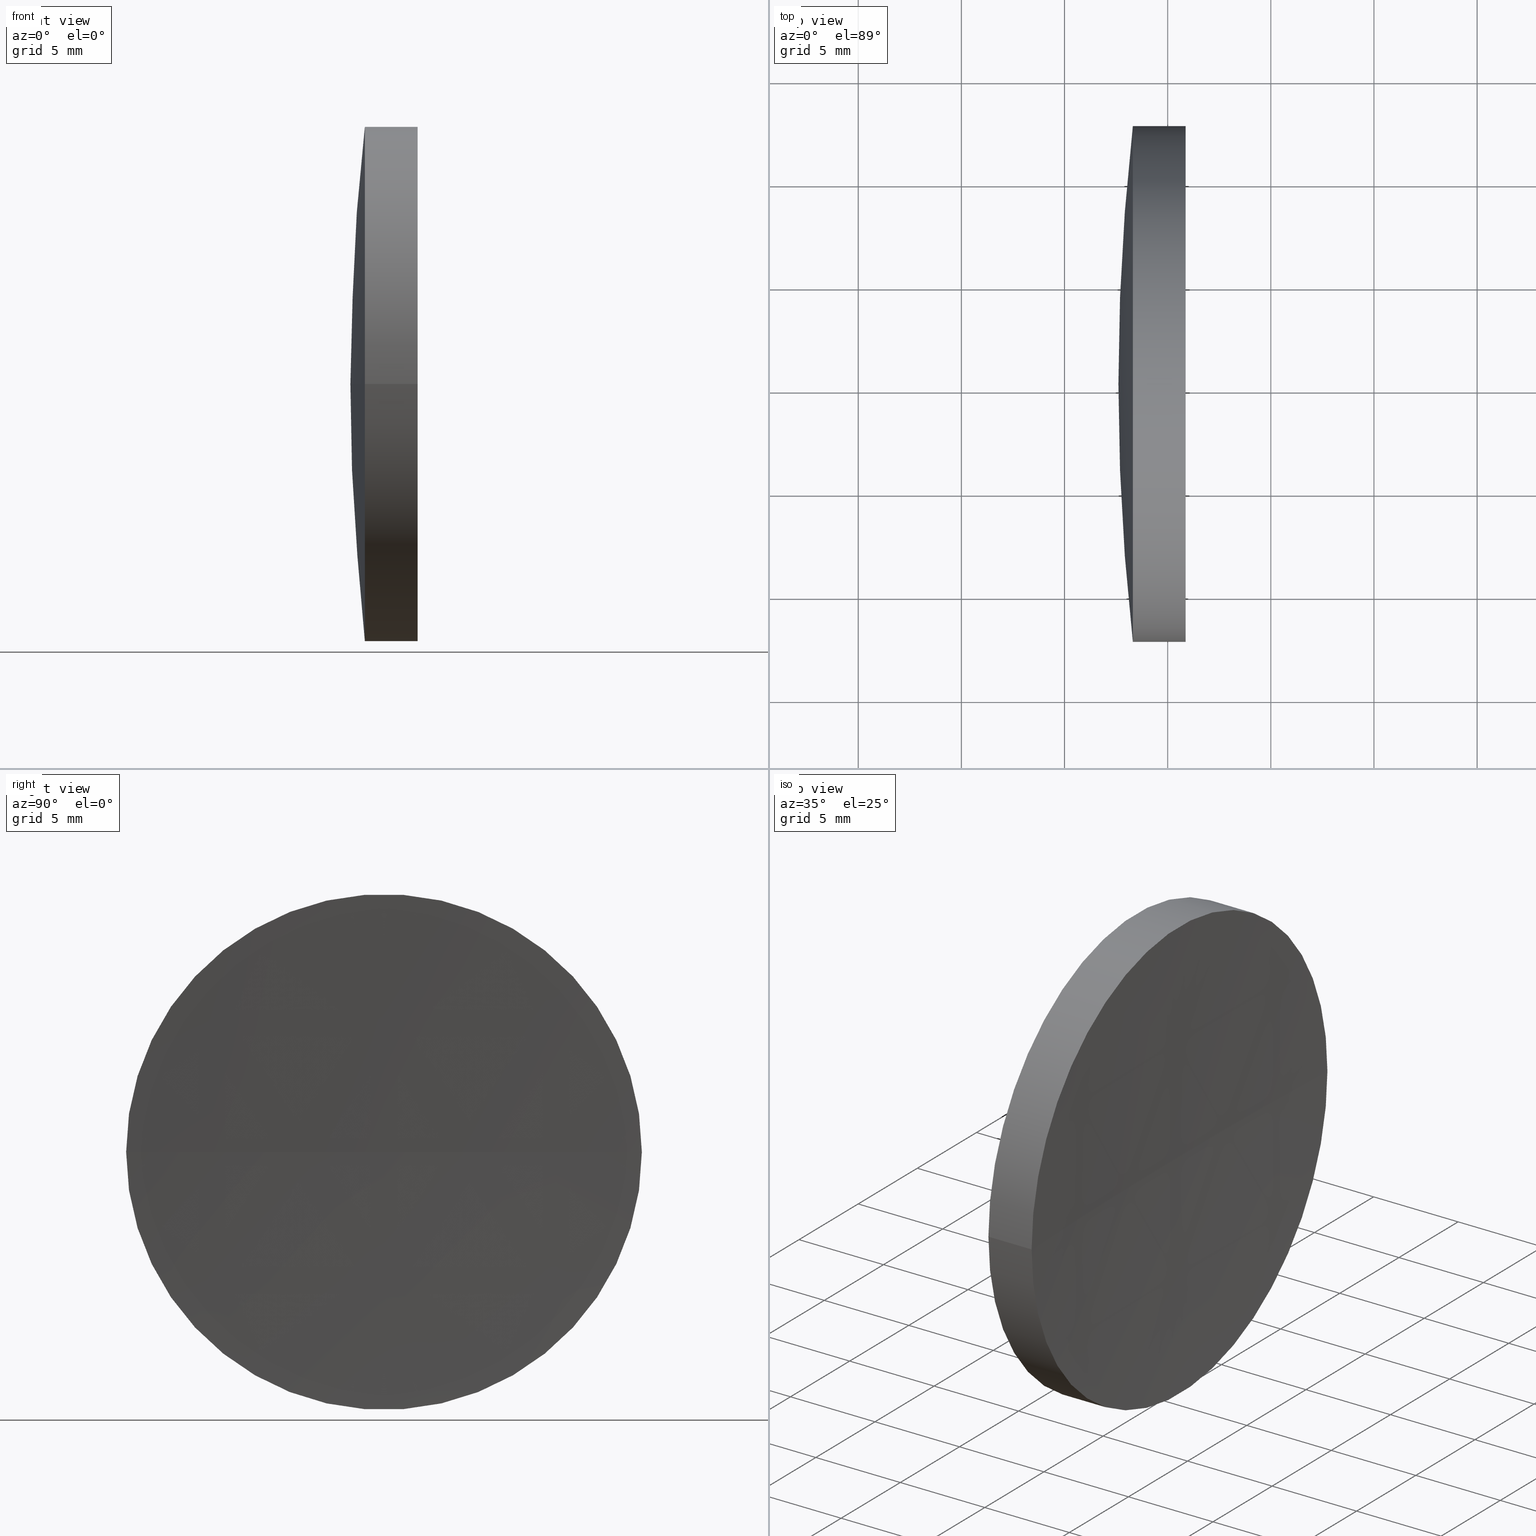
[diagram: canonical four-view strip — front | top / right | iso, engineering-drawing reading convention]
A machine part, canonical four-view strip (front | top / right | iso — engineering-drawing reading convention). The complete STEP part file that produces these views, byte-faithful:
ISO-10303-21;
HEADER;
FILE_DESCRIPTION (( 'STEP AP214' ),
    '1' );
FILE_NAME ('150009.STEP',
    '2019-07-04T06:11:33',
    ( '' ),
    ( '' ),
    'SwSTEP 2.0',
    'SolidWorks 2016',
    '' );
FILE_SCHEMA (( 'AUTOMOTIVE_DESIGN' ));
ENDSEC;

DATA;
#1 = EDGE_LOOP ( 'NONE', ( #11, #16, #95, #44 ) ) ;
#2 = CARTESIAN_POINT ( 'NONE',  ( 115.9444912979631800, 52.71684047094034800, 0.0000000000000000000 ) ) ;
#3 = DIRECTION ( 'NONE',  ( -8.496118506040342700E-032, 1.224646799147353200E-016, -1.000000000000000000 ) ) ;
#4 = VERTEX_POINT ( 'NONE', #21 ) ;
#5 = CIRCLE ( 'NONE', #103, 12.49999999999997700 ) ;
#6 = PRODUCT_RELATED_PRODUCT_CATEGORY ( 'part', '', ( #26 ) ) ;
#7 = DIRECTION ( 'NONE',  ( -1.000000000000000000, -6.937607244762875000E-016, -0.0000000000000000000 ) ) ;
#8 = CARTESIAN_POINT ( 'NONE',  ( 234.6121936984948200, 65.21684047094031200, 0.0000000000000000000 ) ) ;
#9 = VERTEX_POINT ( 'NONE', #184 ) ;
#10 = CARTESIAN_POINT ( 'NONE',  ( 125.8689544180531200, 65.21684047094032600, 0.0000000000000000000 ) ) ;
#11 = ORIENTED_EDGE ( 'NONE', *, *, #43, .T. ) ;
#12 = EDGE_LOOP ( 'NONE', ( #123, #190, #127 ) ) ;
#13 = ORIENTED_EDGE ( 'NONE', *, *, #66, .F. ) ;
#14 = ADVANCED_BREP_SHAPE_REPRESENTATION ( '150009', ( #121, #58 ), #147 ) ;
#15 = CARTESIAN_POINT ( 'NONE',  ( 123.3119241570422400, 65.21684047094032600, 0.0000000000000000000 ) ) ;
#16 = ORIENTED_EDGE ( 'NONE', *, *, #66, .T. ) ;
#17 = APPLICATION_CONTEXT ( 'automotive_design' ) ;
#18 = CYLINDRICAL_SURFACE ( 'NONE', #93, 12.49999999999997700 ) ;
#19 = APPLICATION_PROTOCOL_DEFINITION ( 'draft international standard', 'automotive_design', 1998, #96 ) ;
#20 = CIRCLE ( 'NONE', #181, 112.0000000000000100 ) ;
#21 = CARTESIAN_POINT ( 'NONE',  ( 125.8689544180530900, 77.71684047093980000, 0.0000000000000000000 ) ) ;
#22 = CARTESIAN_POINT ( 'NONE',  ( 125.6121936984946900, 65.21684047093667400, 0.0000000000000000000 ) ) ;
#23 = DIRECTION ( 'NONE',  ( 0.0000000000000000000, 1.000000000000000000, 1.224646799147353200E-016 ) ) ;
#24 = CYLINDRICAL_SURFACE ( 'NONE', #116, 12.49999999999997700 ) ;
#25 = ADVANCED_FACE ( 'NONE', ( #137 ), #92, .F. ) ;
#26 = PRODUCT ( '150009', '150009', '', ( #163 ) ) ;
#27 = CIRCLE ( 'NONE', #140, 12.49999999999997700 ) ;
#28 = AXIS2_PLACEMENT_3D ( 'NONE', #151, #170, #85 ) ;
#29 = FILL_AREA_STYLE_COLOUR ( '', #45 ) ;
#30 = APPLICATION_PROTOCOL_DEFINITION ( 'draft international standard', 'automotive_design', 1998, #17 ) ;
#31 = EDGE_LOOP ( 'NONE', ( #13, #65, #141, #167 ) ) ;
#32 = CIRCLE ( 'NONE', #78, 304.3999999999999800 ) ;
#33 = PRODUCT_DEFINITION_CONTEXT ( 'detailed design', #17, 'design' ) ;
#34 = FILL_AREA_STYLE_COLOUR ( '', #67 ) ;
#35 = EDGE_LOOP ( 'NONE', ( #176, #149, #75 ) ) ;
#36 = SHAPE_DEFINITION_REPRESENTATION ( #122, #14 ) ;
#37 = AXIS2_PLACEMENT_3D ( 'NONE', #154, #134, #74 ) ;
#38 = ORIENTED_EDGE ( 'NONE', *, *, #43, .F. ) ;
#39 = SPHERICAL_SURFACE ( 'NONE', #52, 111.9999999999999900 ) ;
#40 = SPHERICAL_SURFACE ( 'NONE', #50, 304.3999999999999800 ) ;
#41 = ADVANCED_FACE ( 'NONE', ( #61 ), #24, .T. ) ;
#42 = FILL_AREA_STYLE ('',( #29 ) ) ;
#43 = EDGE_CURVE ( 'NONE', #49, #4, #51, .T. ) ;
#44 = ORIENTED_EDGE ( 'NONE', *, *, #155, .F. ) ;
#45 = COLOUR_RGB ( '',1.000000000000000000, 1.000000000000000000, 1.000000000000000000 ) ;
#46 = SURFACE_STYLE_USAGE ( .BOTH. , #104 ) ;
#47 = DIRECTION ( 'NONE',  ( -0.0000000000000000000, 0.0000000000000000000, 1.000000000000000000 ) ) ;
#48 = FILL_AREA_STYLE ('',( #34 ) ) ;
#49 = VERTEX_POINT ( 'NONE', #114 ) ;
#50 = AXIS2_PLACEMENT_3D ( 'NONE', #68, #146, #80 ) ;
#51 = CIRCLE ( 'NONE', #192, 12.49999999999996300 ) ;
#52 = AXIS2_PLACEMENT_3D ( 'NONE', #91, #186, #156 ) ;
#53 = CARTESIAN_POINT ( 'NONE',  ( 123.3119241570422600, 52.71684047094034800, 0.0000000000000000000 ) ) ;
#54 = DIRECTION ( 'NONE',  ( -1.000000000000000000, -6.937607244762875000E-016, -0.0000000000000000000 ) ) ;
#55 = CIRCLE ( 'NONE', #130, 12.49999999999996300 ) ;
#56 = UNCERTAINTY_MEASURE_WITH_UNIT (LENGTH_MEASURE( 1.000000000000000100E-005 ), #73, 'distance_accuracy_value', 'NONE');
#57 = DIRECTION ( 'NONE',  ( 1.110223024625158500E-015, -1.000000000000000000, 0.0000000000000000000 ) ) ;
#58 = AXIS2_PLACEMENT_3D ( 'NONE', #79, #180, #82 ) ;
#59 = SURFACE_SIDE_STYLE ('',( #119 ) ) ;
#60 = EDGE_CURVE ( 'NONE', #9, #177, #27, .T. ) ;
#61 = FACE_OUTER_BOUND ( 'NONE', #1, .T. ) ;
#62 = DIRECTION ( 'NONE',  ( -1.000000000000000000, -6.937607244762875000E-016, -0.0000000000000000000 ) ) ;
#63 = DIRECTION ( 'NONE',  ( 1.110223024625158500E-015, -1.000000000000000000, 0.0000000000000000000 ) ) ;
#64 = PRESENTATION_LAYER_ASSIGNMENT (  '', '', ( #101 ) ) ;
#65 = ORIENTED_EDGE ( 'NONE', *, *, #152, .T. ) ;
#66 = EDGE_CURVE ( 'NONE', #4, #9, #183, .T. ) ;
#67 = COLOUR_RGB ( '',1.000000000000000000, 1.000000000000000000, 1.000000000000000000 ) ;
#68 = CARTESIAN_POINT ( 'NONE',  ( 430.0121936984946800, 65.21684047093687300, 0.0000000000000000000 ) ) ;
#69 = DIRECTION ( 'NONE',  ( -1.000000000000000000, -6.937607244762875000E-016, -0.0000000000000000000 ) ) ;
#70 = DIRECTION ( 'NONE',  ( 0.0000000000000000000, -1.000000000000000000, 0.0000000000000000000 ) ) ;
#71 = DIRECTION ( 'NONE',  ( -1.000000000000000000, -6.937607244762875000E-016, -0.0000000000000000000 ) ) ;
#72 = EDGE_CURVE ( 'NONE', #9, #162, #20, .T. ) ;
#73 =( LENGTH_UNIT ( ) NAMED_UNIT ( * ) SI_UNIT ( .MILLI., .METRE. ) );
#74 = DIRECTION ( 'NONE',  ( 1.000000000000000000, 0.0000000000000000000, 0.0000000000000000000 ) ) ;
#75 = ORIENTED_EDGE ( 'NONE', *, *, #81, .T. ) ;
#76 = ADVANCED_FACE ( 'NONE', ( #83 ), #39, .T. ) ;
#77 = VERTEX_POINT ( 'NONE', #22 ) ;
#78 = AXIS2_PLACEMENT_3D ( 'NONE', #187, #106, #23 ) ;
#79 = CARTESIAN_POINT ( 'NONE',  ( 0.0000000000000000000, 0.0000000000000000000, 0.0000000000000000000 ) ) ;
#80 = DIRECTION ( 'NONE',  ( -7.294500818824944100E-016, 1.000000000000000000, 0.0000000000000000000 ) ) ;
#81 = EDGE_CURVE ( 'NONE', #4, #77, #153, .T. ) ;
#82 = DIRECTION ( 'NONE',  ( 1.000000000000000000, 0.0000000000000000000, 0.0000000000000000000 ) ) ;
#83 = FACE_OUTER_BOUND ( 'NONE', #107, .T. ) ;
#84 = PRESENTATION_STYLE_ASSIGNMENT (( #46 ) ) ;
#85 = DIRECTION ( 'NONE',  ( -7.294500818824944100E-016, 1.000000000000000000, 0.0000000000000000000 ) ) ;
#86 = CARTESIAN_POINT ( 'NONE',  ( 115.9444912979631700, 65.21684047094032600, 0.0000000000000000000 ) ) ;
#87 = ORIENTED_EDGE ( 'NONE', *, *, #72, .T. ) ;
#88 = CARTESIAN_POINT ( 'NONE',  ( 123.3119241570422400, 65.21684047094032600, 0.0000000000000000000 ) ) ;
#89 = EDGE_CURVE ( 'NONE', #49, #77, #32, .T. ) ;
#90 = CARTESIAN_POINT ( 'NONE',  ( 234.6121936984948200, 65.21684047094031200, 0.0000000000000000000 ) ) ;
#91 = CARTESIAN_POINT ( 'NONE',  ( 234.6121936984948200, 65.21684047094031200, 0.0000000000000000000 ) ) ;
#92 = SPHERICAL_SURFACE ( 'NONE', #28, 304.3999999999999800 ) ;
#93 = AXIS2_PLACEMENT_3D ( 'NONE', #86, #69, #57 ) ;
#94 = MECHANICAL_DESIGN_GEOMETRIC_PRESENTATION_REPRESENTATION (  '', ( #101 ), #113 ) ;
#95 = ORIENTED_EDGE ( 'NONE', *, *, #161, .F. ) ;
#96 = APPLICATION_CONTEXT ( 'automotive_design' ) ;
#97 =( LENGTH_UNIT ( ) NAMED_UNIT ( * ) SI_UNIT ( .MILLI., .METRE. ) );
#98 =( NAMED_UNIT ( * ) PLANE_ANGLE_UNIT ( ) SI_UNIT ( $, .RADIAN. ) );
#99 = CIRCLE ( 'NONE', #133, 111.9999999999999900 ) ;
#100 = DIRECTION ( 'NONE',  ( 1.110223024625158500E-015, -1.000000000000000000, 0.0000000000000000000 ) ) ;
#101 = STYLED_ITEM ( 'NONE', ( #84 ), #121 ) ;
#102 = FACE_OUTER_BOUND ( 'NONE', #12, .T. ) ;
#103 = AXIS2_PLACEMENT_3D ( 'NONE', #15, #54, #182 ) ;
#104 = SURFACE_SIDE_STYLE ('',( #174 ) ) ;
#105 = DIRECTION ( 'NONE',  ( 1.000000000000000000, 0.0000000000000000000, 0.0000000000000000000 ) ) ;
#106 = DIRECTION ( 'NONE',  ( -8.496118506040342700E-032, 1.224646799147353200E-016, -1.000000000000000000 ) ) ;
#107 = EDGE_LOOP ( 'NONE', ( #124, #157, #87 ) ) ;
#108 = LINE ( 'NONE', #2, #150 ) ;
#109 = PRODUCT_DEFINITION_FORMATION_WITH_SPECIFIED_SOURCE ( '�κ�', '', #26, .NOT_KNOWN. ) ;
#110 = AXIS2_PLACEMENT_3D ( 'NONE', #90, #172, #117 ) ;
#111 = CARTESIAN_POINT ( 'NONE',  ( 234.6121936984948200, 65.21684047094031200, 0.0000000000000000000 ) ) ;
#112 = DIRECTION ( 'NONE',  ( -1.000000000000000000, -6.937607244762875000E-016, -0.0000000000000000000 ) ) ;
#113 =( GEOMETRIC_REPRESENTATION_CONTEXT ( 3 ) GLOBAL_UNCERTAINTY_ASSIGNED_CONTEXT ( ( #56 ) ) GLOBAL_UNIT_ASSIGNED_CONTEXT ( ( #73, #188, #128 ) ) REPRESENTATION_CONTEXT ( 'NONE', 'WORKASPACE' ) );
#114 = CARTESIAN_POINT ( 'NONE',  ( 125.8689544180530900, 52.71684047093719300, -1.530808498934126800E-015 ) ) ;
#115 = EDGE_LOOP ( 'NONE', ( #38, #118, #191 ) ) ;
#116 = AXIS2_PLACEMENT_3D ( 'NONE', #131, #71, #100 ) ;
#117 = DIRECTION ( 'NONE',  ( -7.434529182757745400E-016, 1.000000000000000000, 0.0000000000000000000 ) ) ;
#118 = ORIENTED_EDGE ( 'NONE', *, *, #89, .T. ) ;
#119 = SURFACE_STYLE_FILL_AREA ( #42 ) ;
#120 = ADVANCED_FACE ( 'NONE', ( #102 ), #144, .T. ) ;
#121 = MANIFOLD_SOLID_BREP ( '��ת1', #173 ) ;
#122 = PRODUCT_DEFINITION_SHAPE ( 'NONE', 'NONE',  #179 ) ;
#123 = ORIENTED_EDGE ( 'NONE', *, *, #60, .T. ) ;
#124 = ORIENTED_EDGE ( 'NONE', *, *, #185, .F. ) ;
#125 = SURFACE_STYLE_USAGE ( .BOTH. , #59 ) ;
#126 = DIRECTION ( 'NONE',  ( -1.000000000000000000, -6.937607244762875000E-016, -0.0000000000000000000 ) ) ;
#127 = ORIENTED_EDGE ( 'NONE', *, *, #72, .F. ) ;
#128 =( NAMED_UNIT ( * ) SI_UNIT ( $, .STERADIAN. ) SOLID_ANGLE_UNIT ( ) );
#129 =( NAMED_UNIT ( * ) SI_UNIT ( $, .STERADIAN. ) SOLID_ANGLE_UNIT ( ) );
#130 = AXIS2_PLACEMENT_3D ( 'NONE', #168, #112, #70 ) ;
#131 = CARTESIAN_POINT ( 'NONE',  ( 115.9444912979631700, 65.21684047094032600, 0.0000000000000000000 ) ) ;
#132 = VECTOR ( 'NONE', #135, 1000.000000000000000 ) ;
#133 = AXIS2_PLACEMENT_3D ( 'NONE', #111, #3, #145 ) ;
#134 = DIRECTION ( 'NONE',  ( 0.0000000000000000000, -0.0000000000000000000, 1.000000000000000000 ) ) ;
#135 = DIRECTION ( 'NONE',  ( -1.000000000000000000, -6.937607244762875000E-016, -0.0000000000000000000 ) ) ;
#136 = DIRECTION ( 'NONE',  ( 0.0000000000000000000, -1.000000000000000000, 0.0000000000000000000 ) ) ;
#137 = FACE_OUTER_BOUND ( 'NONE', #115, .T. ) ;
#138 = ADVANCED_FACE ( 'NONE', ( #160 ), #18, .T. ) ;
#139 = UNCERTAINTY_MEASURE_WITH_UNIT (LENGTH_MEASURE( 1.000000000000000100E-005 ), #148, 'distance_accuracy_value', 'NONE');
#140 = AXIS2_PLACEMENT_3D ( 'NONE', #88, #7, #63 ) ;
#141 = ORIENTED_EDGE ( 'NONE', *, *, #155, .T. ) ;
#142 = CARTESIAN_POINT ( 'NONE',  ( 122.6121936984948200, 65.21684047094024100, 0.0000000000000000000 ) ) ;
#143 =( GEOMETRIC_REPRESENTATION_CONTEXT ( 3 ) GLOBAL_UNCERTAINTY_ASSIGNED_CONTEXT ( ( #175 ) ) GLOBAL_UNIT_ASSIGNED_CONTEXT ( ( #97, #164, #165 ) ) REPRESENTATION_CONTEXT ( 'NONE', 'WORKASPACE' ) );
#144 = SPHERICAL_SURFACE ( 'NONE', #110, 111.9999999999999900 ) ;
#145 = DIRECTION ( 'NONE',  ( 0.0000000000000000000, 1.000000000000000000, 1.224646799147353200E-016 ) ) ;
#146 = DIRECTION ( 'NONE',  ( 0.0000000000000000000, 0.0000000000000000000, -1.000000000000000000 ) ) ;
#147 =( GEOMETRIC_REPRESENTATION_CONTEXT ( 3 ) GLOBAL_UNCERTAINTY_ASSIGNED_CONTEXT ( ( #139 ) ) GLOBAL_UNIT_ASSIGNED_CONTEXT ( ( #148, #98, #129 ) ) REPRESENTATION_CONTEXT ( 'NONE', 'WORKASPACE' ) );
#148 =( LENGTH_UNIT ( ) NAMED_UNIT ( * ) SI_UNIT ( .MILLI., .METRE. ) );
#149 = ORIENTED_EDGE ( 'NONE', *, *, #152, .F. ) ;
#150 = VECTOR ( 'NONE', #126, 1000.000000000000000 ) ;
#151 = CARTESIAN_POINT ( 'NONE',  ( 430.0121936984946800, 65.21684047093687300, 0.0000000000000000000 ) ) ;
#152 = EDGE_CURVE ( 'NONE', #4, #49, #55, .T. ) ;
#153 = CIRCLE ( 'NONE', #37, 304.3999999999999200 ) ;
#154 = CARTESIAN_POINT ( 'NONE',  ( 430.0121936984946800, 65.21684047093687300, 0.0000000000000000000 ) ) ;
#155 = EDGE_CURVE ( 'NONE', #49, #177, #108, .T. ) ;
#156 = DIRECTION ( 'NONE',  ( -7.434529182757745400E-016, 1.000000000000000000, 0.0000000000000000000 ) ) ;
#157 = ORIENTED_EDGE ( 'NONE', *, *, #161, .T. ) ;
#158 = STYLED_ITEM ( 'NONE', ( #169 ), #14 ) ;
#159 = ADVANCED_FACE ( 'NONE', ( #178 ), #40, .F. ) ;
#160 = FACE_OUTER_BOUND ( 'NONE', #31, .T. ) ;
#161 = EDGE_CURVE ( 'NONE', #177, #9, #5, .T. ) ;
#162 = VERTEX_POINT ( 'NONE', #142 ) ;
#163 = PRODUCT_CONTEXT ( 'NONE', #96, 'mechanical' ) ;
#164 =( NAMED_UNIT ( * ) PLANE_ANGLE_UNIT ( ) SI_UNIT ( $, .RADIAN. ) );
#165 =( NAMED_UNIT ( * ) SI_UNIT ( $, .STERADIAN. ) SOLID_ANGLE_UNIT ( ) );
#166 = MECHANICAL_DESIGN_GEOMETRIC_PRESENTATION_REPRESENTATION (  '', ( #158 ), #143 ) ;
#167 = ORIENTED_EDGE ( 'NONE', *, *, #60, .F. ) ;
#168 = CARTESIAN_POINT ( 'NONE',  ( 125.8689544180531200, 65.21684047094032600, 0.0000000000000000000 ) ) ;
#169 = PRESENTATION_STYLE_ASSIGNMENT (( #125 ) ) ;
#170 = DIRECTION ( 'NONE',  ( 0.0000000000000000000, 0.0000000000000000000, -1.000000000000000000 ) ) ;
#171 = PRESENTATION_LAYER_ASSIGNMENT (  '', '', ( #158 ) ) ;
#172 = DIRECTION ( 'NONE',  ( -0.0000000000000000000, 0.0000000000000000000, -1.000000000000000000 ) ) ;
#173 = CLOSED_SHELL ( 'NONE', ( #120, #41, #25, #159, #138, #76 ) ) ;
#174 = SURFACE_STYLE_FILL_AREA ( #48 ) ;
#175 = UNCERTAINTY_MEASURE_WITH_UNIT (LENGTH_MEASURE( 1.000000000000000100E-005 ), #97, 'distance_accuracy_value', 'NONE');
#176 = ORIENTED_EDGE ( 'NONE', *, *, #89, .F. ) ;
#177 = VERTEX_POINT ( 'NONE', #53 ) ;
#178 = FACE_OUTER_BOUND ( 'NONE', #35, .T. ) ;
#179 = PRODUCT_DEFINITION ( 'δ֪', '', #109, #33 ) ;
#180 = DIRECTION ( 'NONE',  ( 0.0000000000000000000, 0.0000000000000000000, 1.000000000000000000 ) ) ;
#181 = AXIS2_PLACEMENT_3D ( 'NONE', #8, #47, #105 ) ;
#182 = DIRECTION ( 'NONE',  ( 1.110223024625158500E-015, -1.000000000000000000, 0.0000000000000000000 ) ) ;
#183 = LINE ( 'NONE', #189, #132 ) ;
#184 = CARTESIAN_POINT ( 'NONE',  ( 123.3119241570422300, 77.71684047094031200, 1.530808498934189700E-015 ) ) ;
#185 = EDGE_CURVE ( 'NONE', #177, #162, #99, .T. ) ;
#186 = DIRECTION ( 'NONE',  ( -0.0000000000000000000, 0.0000000000000000000, -1.000000000000000000 ) ) ;
#187 = CARTESIAN_POINT ( 'NONE',  ( 430.0121936984946800, 65.21684047093687300, 0.0000000000000000000 ) ) ;
#188 =( NAMED_UNIT ( * ) PLANE_ANGLE_UNIT ( ) SI_UNIT ( $, .RADIAN. ) );
#189 = CARTESIAN_POINT ( 'NONE',  ( 115.9444912979631500, 77.71684047094029800, 1.530808498934188800E-015 ) ) ;
#190 = ORIENTED_EDGE ( 'NONE', *, *, #185, .T. ) ;
#191 = ORIENTED_EDGE ( 'NONE', *, *, #81, .F. ) ;
#192 = AXIS2_PLACEMENT_3D ( 'NONE', #10, #62, #136 ) ;
ENDSEC;
END-ISO-10303-21;
